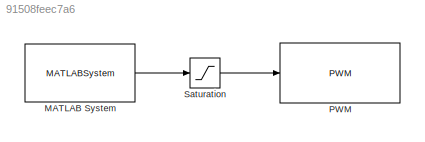
MODEL slx_91508feec7a6
KIND model
CONFIG AbsTol = auto
CONFIG FixedStep = auto
CONFIG MaxStep = auto
CONFIG MinStep = auto
CONFIG RelTol = 1e-3
CONFIG SampleTimeConstraint = Unconstrained
CONFIG Solver = ode45
CONFIG SolverMode = Auto
CONFIG SolverName = ode45
CONFIG StartTime = 0.0
CONFIG StopTime = 10.0
BLOCK [MATLABSystem] MATLAB System
  Encoder = 0
  MaskDisplay = disp('Encoder');\nport_label('output',1,'y');
  MaskType = Encoder_arduino
  PinA = 2
  PinB = 3
  Ports = [0, 1]
  SampleTime = 0.01
  System = Encoder_arduino
BLOCK [Reference] PWM  REF=arduinolib/PWM
  Ports = [1]
  SourceBlock = arduinolib/PWM
  SourceType = Arduino PWM
  blockPlatform = arduino
  pinNumber = 6
BLOCK [Saturate] Saturation
  InputPortMap = u0
  LockScale = on
  LowerLimit = 0
  Ports = [1, 1]
  UpperLimit = 255
LINE MATLAB System:1 -> Saturation:1
LINE Saturation:1 -> PWM:1
